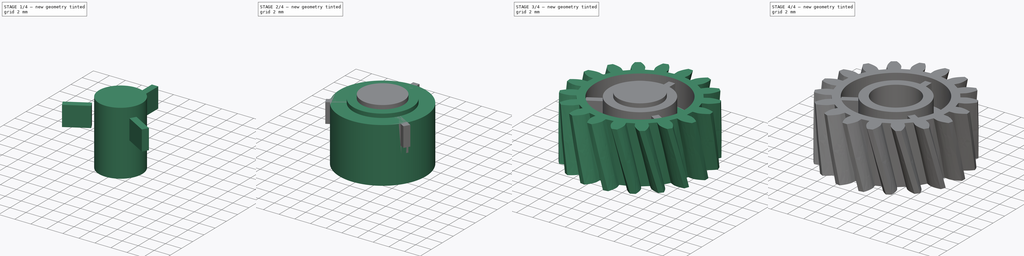
[diagram: build sequence overview — one tinted view per stage of 4, left to right]
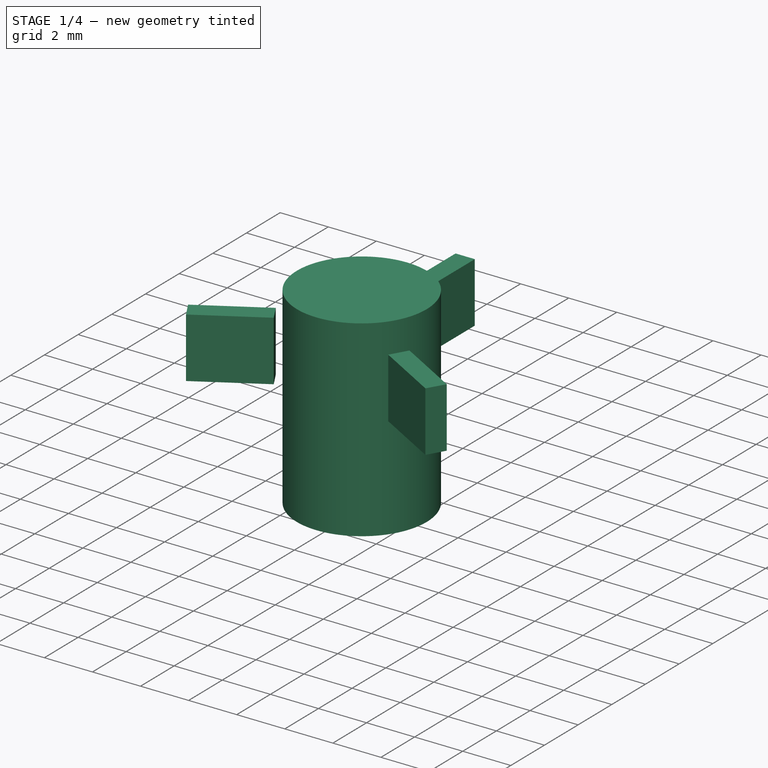
[diagram: stage 1 of 4 — iso view after this stage's code; geometry added in this stage tinted green]
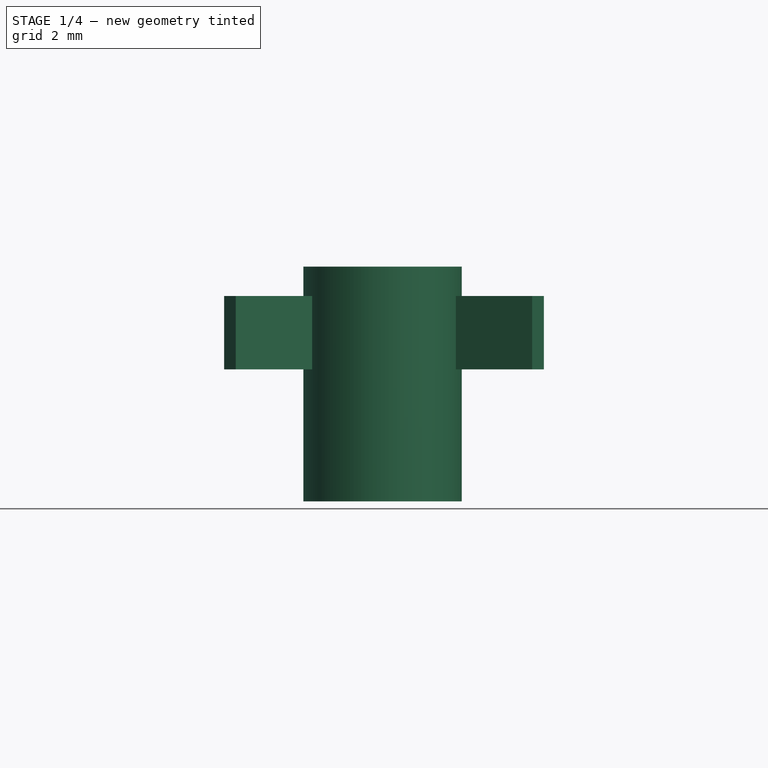
[diagram: stage 1 of 4 — front view after this stage's code; geometry added in this stage tinted green]
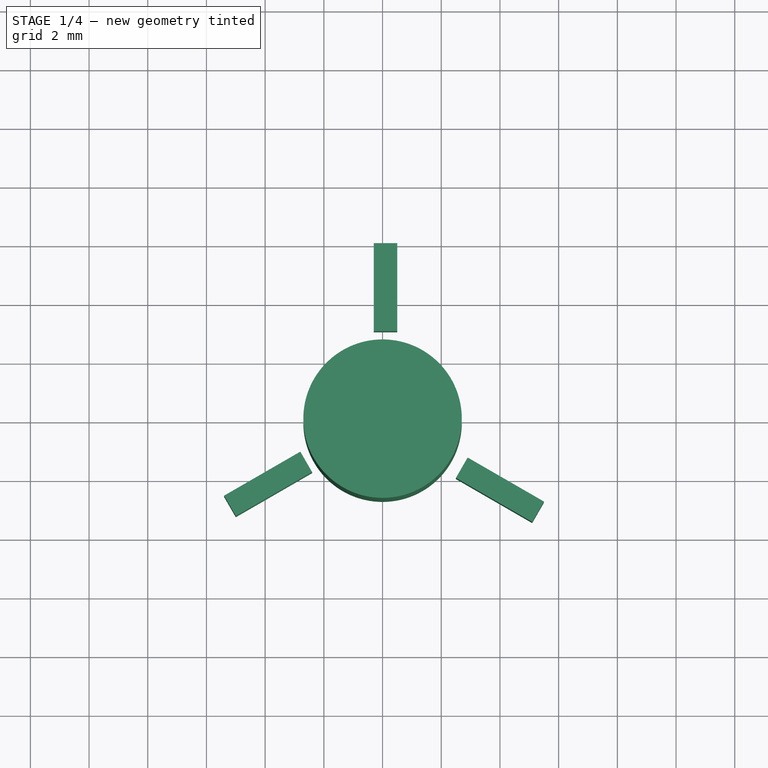
[diagram: stage 1 of 4 — top view after this stage's code; geometry added in this stage tinted green]
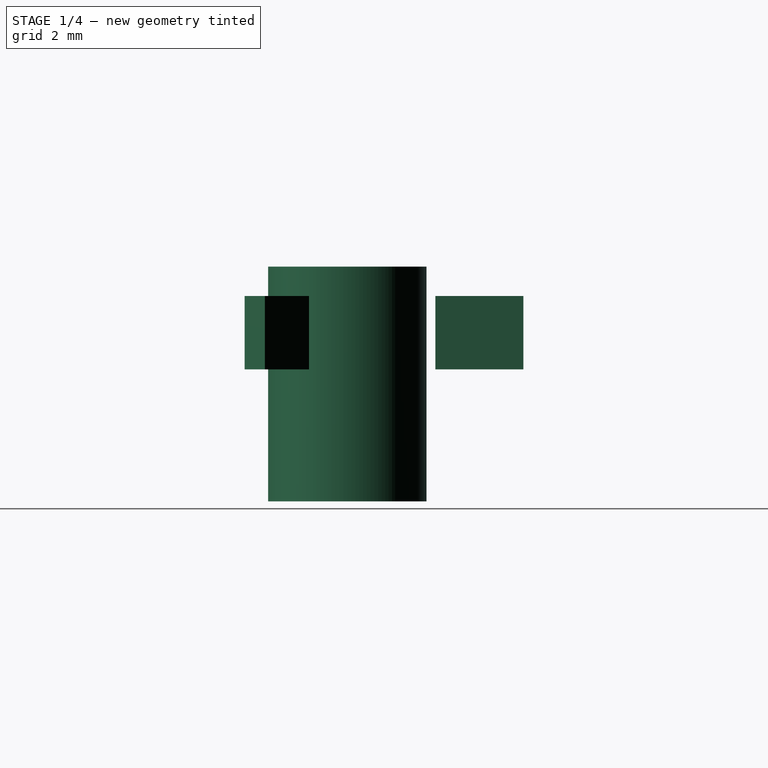
[diagram: stage 1 of 4 — right view after this stage's code; geometry added in this stage tinted green]
FCSTD DOCUMENT  (FreeCAD 0.15R4671 (Git))
Label: Idlegear A
License: All rights reserved
LicenseURL: http://en.wikipedia.org/wiki/All_rights_reserved
objects: Part::Cylinder×4, Part::Cut×3, Part::Box×3, Part::FeaturePython×1, Part::MultiFuse×1, Sketcher::SketchObject×1, PartDesign::Pad×1, PartDesign::PolarPattern×1
note: 16 computed .brp shape members not serialized (recipe doc carries the construction recipe); baked Part::Feature solids carry a one-line shape summary decoded from their .brp

FEATURE [Part::Cylinder] Cylinder003
  Angle = 360
  Height = 8
  Placement = pos=(0,0,0.5) rot=(0,0,1;0rad)
  Radius = 2.7
FEATURE [Part::Box] Box  label="Cube"
  Height = 2.5
  Length = 3
  Placement = pos=(0.5,3,5) rot=(0,0,1;1.5708rad)
  Width = 0.8
FEATURE [Part::Box] Box001  label="Cube001"
  Height = 2.5
  Length = 3
  Placement = pos=(-5,-3.3,5) rot=(0,0,1;0.523599rad)
  Width = 0.8
FEATURE [Part::Box] Box002  label="Cube002"
  Height = 2.5
  Length = 3
  Placement = pos=(2.5,-2,5) rot=(0,0,-1;0.523599rad)
  Width = 0.8
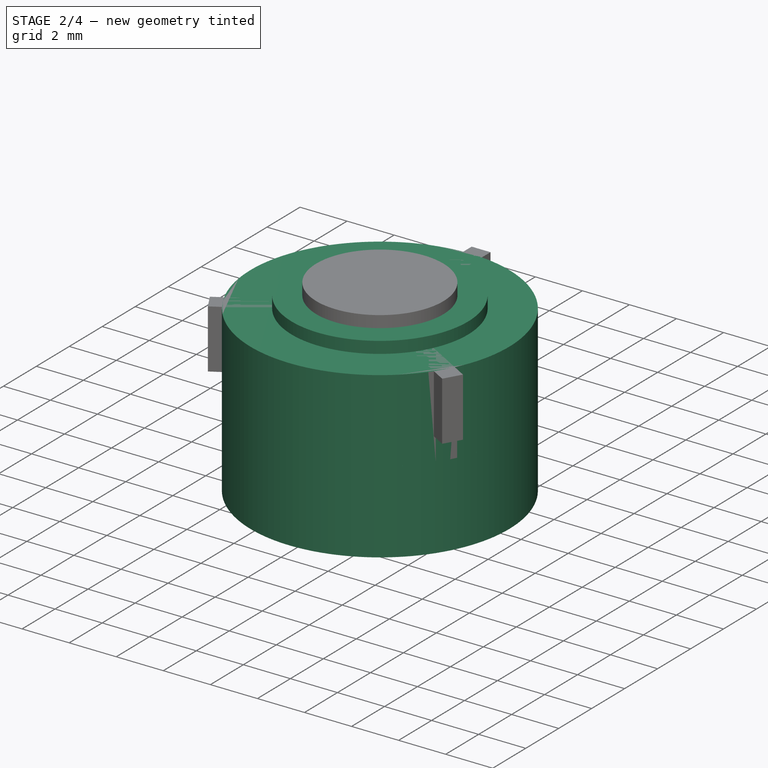
[diagram: stage 2 of 4 — iso view after this stage's code; geometry added in this stage tinted green]
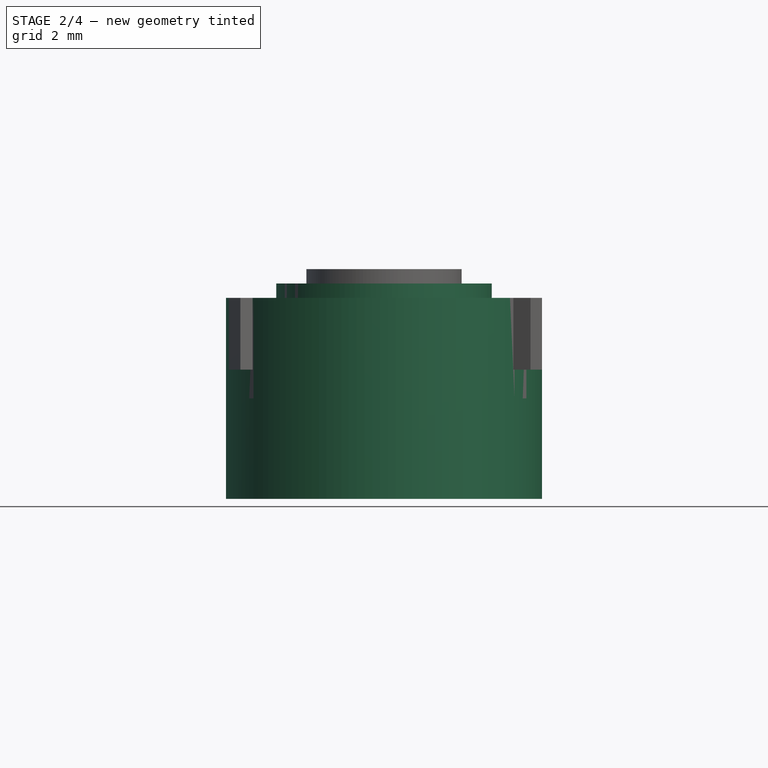
[diagram: stage 2 of 4 — front view after this stage's code; geometry added in this stage tinted green]
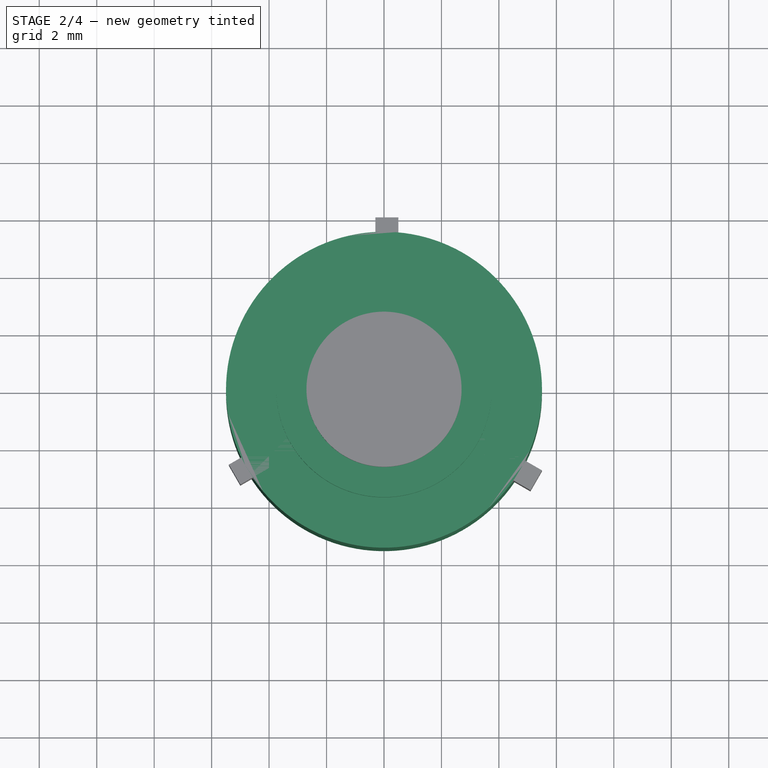
[diagram: stage 2 of 4 — top view after this stage's code; geometry added in this stage tinted green]
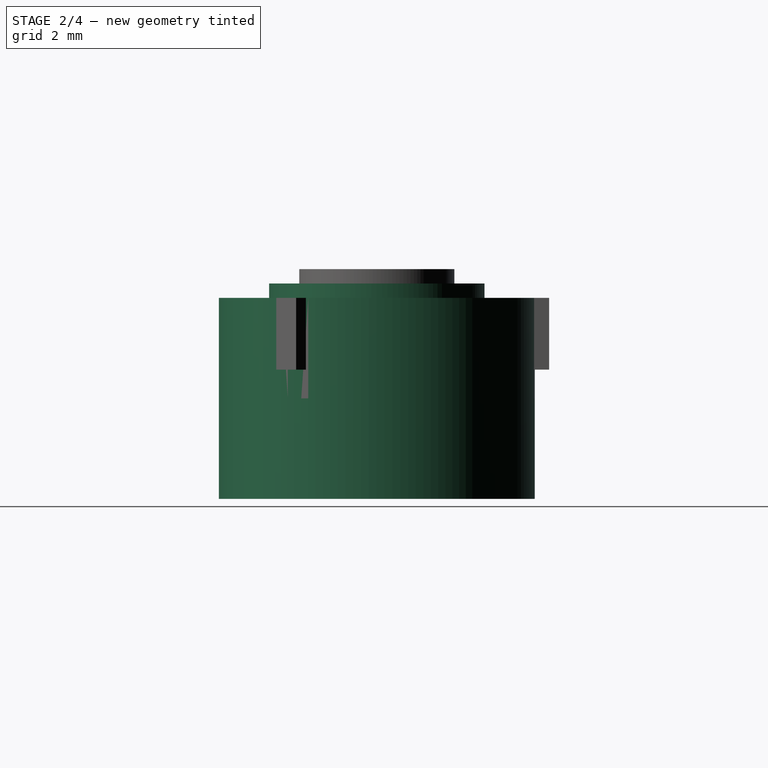
[diagram: stage 2 of 4 — right view after this stage's code; geometry added in this stage tinted green]
FEATURE [Part::Cylinder] Cylinder
  Angle = 360
  Height = 3.5
  Placement = pos=(0,0,4) rot=(0,0,1;0rad)
  Radius = 5.5
FEATURE [Part::Cylinder] Cylinder001
  Angle = 360
  Height = 3.5
  Placement = pos=(0,0,0.5) rot=(0,0,1;0rad)
  Radius = 5.5
FEATURE [Part::Cylinder] Cylinder002
  Angle = 360
  Height = 7
  Placement = pos=(0,0,1) rot=(0,0,1;0rad)
  Radius = 3.75
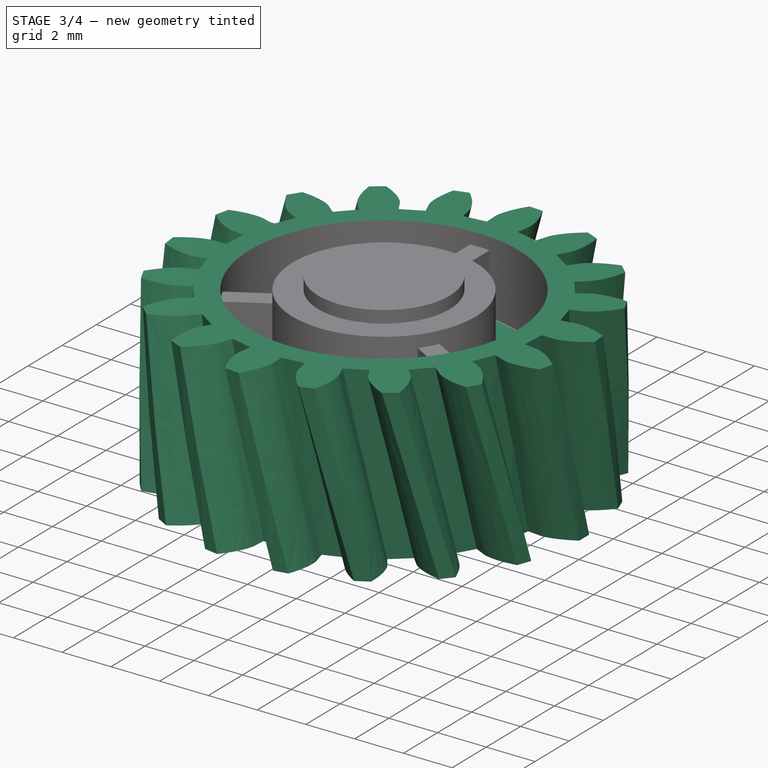
[diagram: stage 3 of 4 — iso view after this stage's code; geometry added in this stage tinted green]
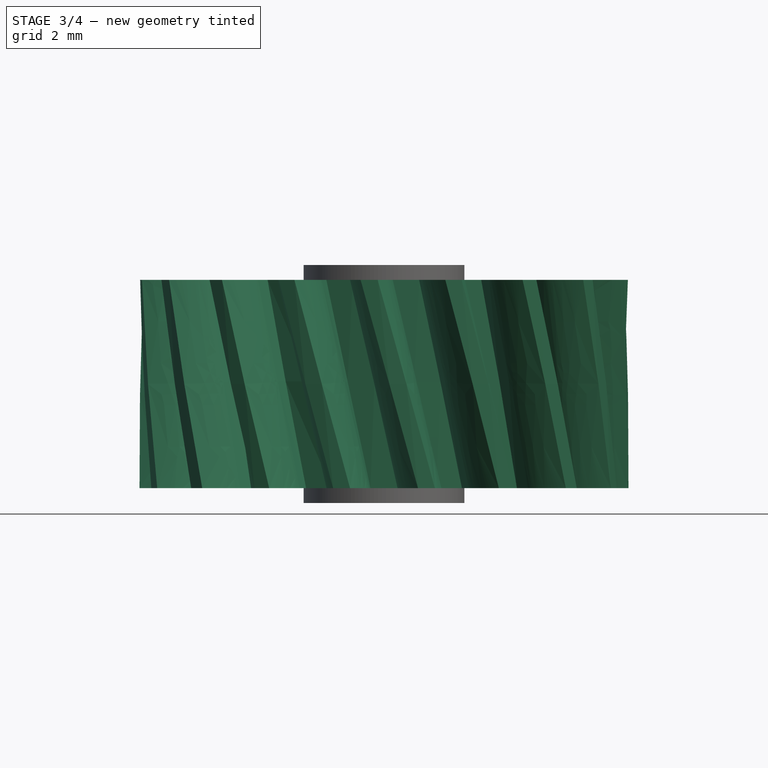
[diagram: stage 3 of 4 — front view after this stage's code; geometry added in this stage tinted green]
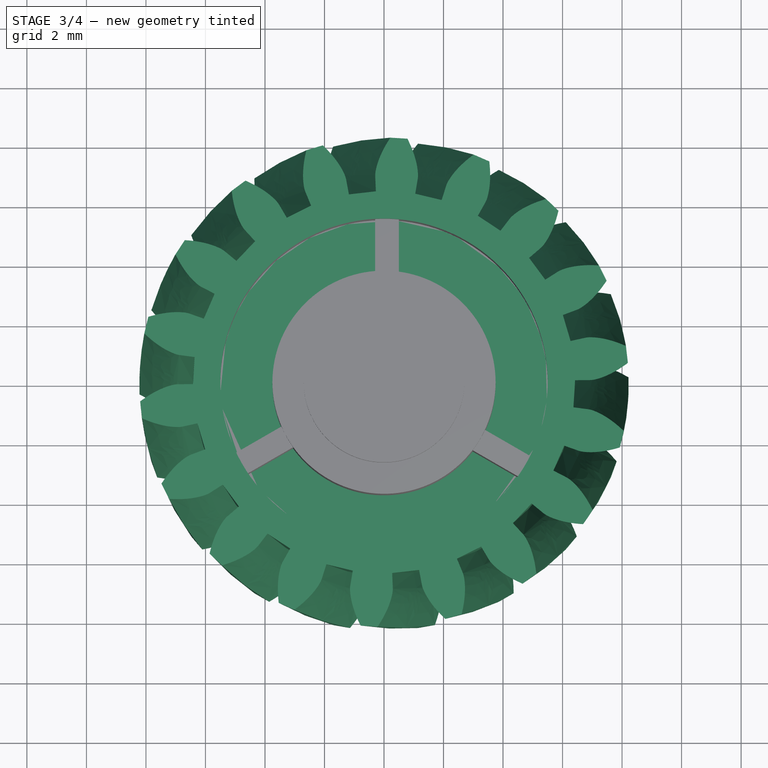
[diagram: stage 3 of 4 — top view after this stage's code; geometry added in this stage tinted green]
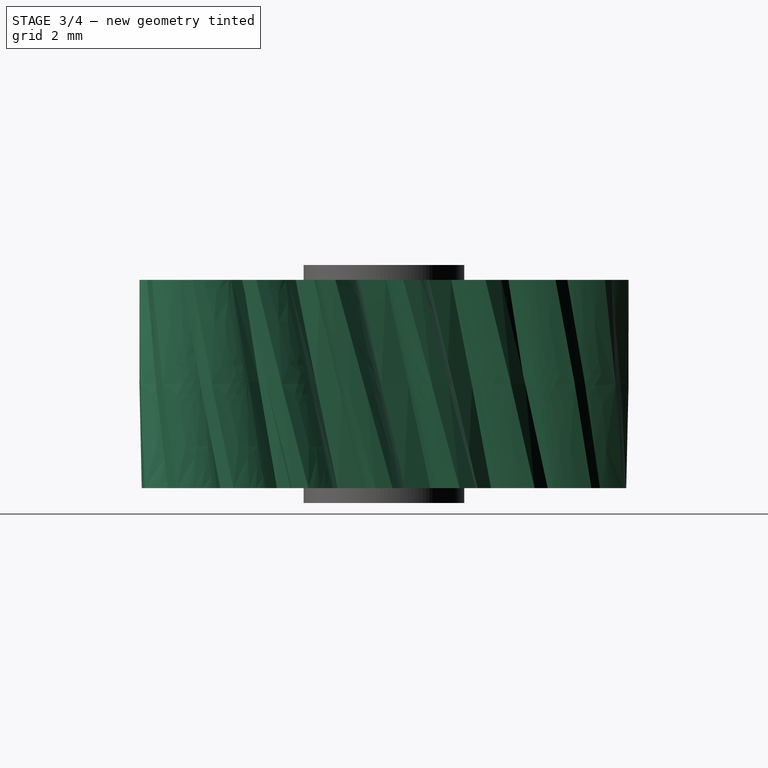
[diagram: stage 3 of 4 — right view after this stage's code; geometry added in this stage tinted green]
FEATURE [Part::FeaturePython] InvoluteGear  # WARN: FeaturePython — macro-defined, semantics opaque (R4)
  backlash = 0
  beta = -14
  clearance = 0.25
  double_helix = false
  head = 0
  height = 7
  module = 0.8
  numpoints = 6
  pressure_angle = 20
  reversed_backlash = false
  shift = 0
  simple = false
  teeth = 18
  undercut = false
FEATURE [Part::Cut] Cut
  Base = -> InvoluteGear
  Placement = pos=(0,0,1) rot=(0,0,1;0rad)
  Tool = -> Cylinder
FEATURE [Part::Cut] Cut001
  Base = -> Cut
  Tool = -> Cylinder001
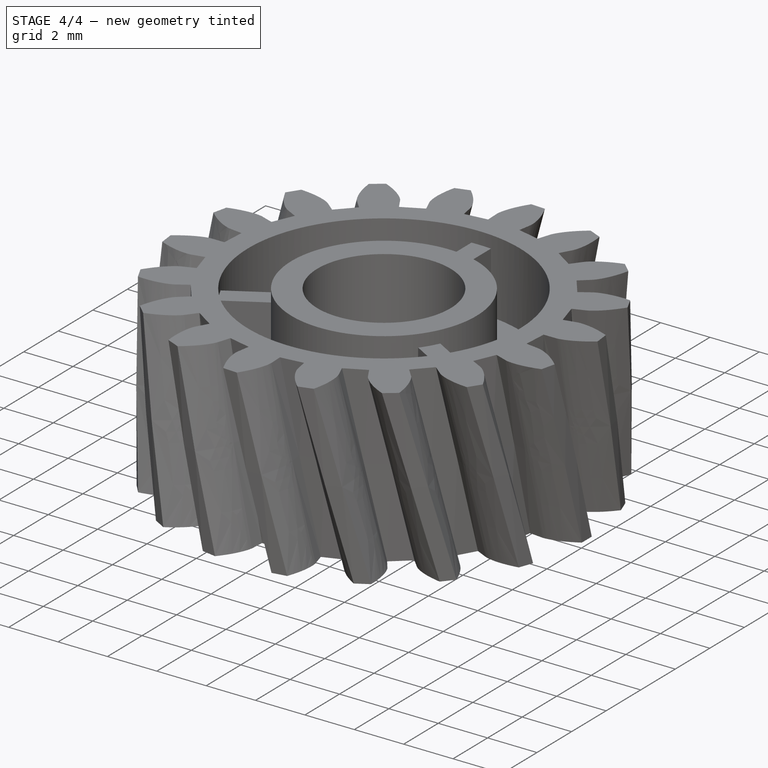
[diagram: stage 4 of 4 — iso view after this stage's code; geometry added in this stage tinted green]
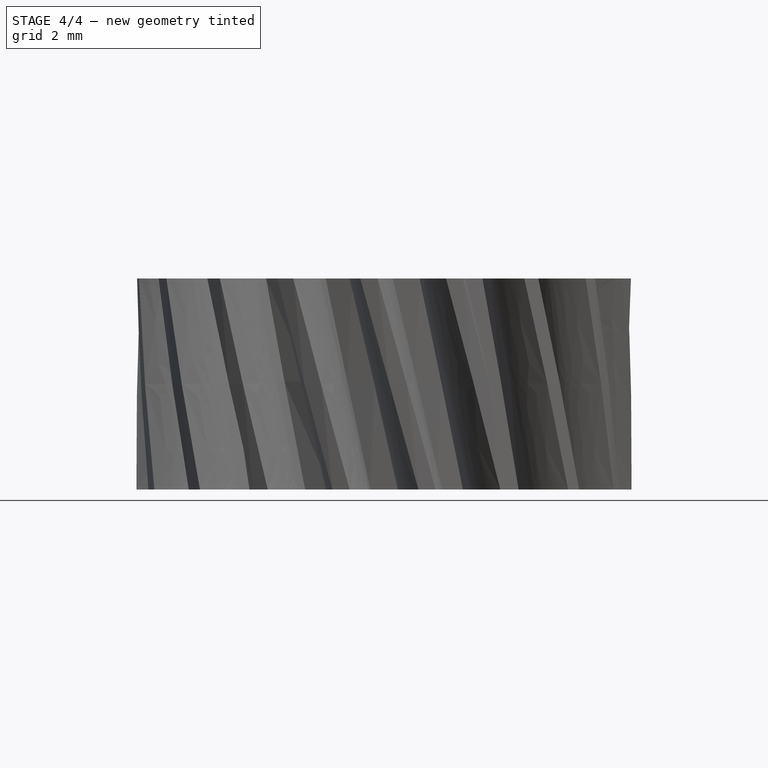
[diagram: stage 4 of 4 — front view after this stage's code; geometry added in this stage tinted green]
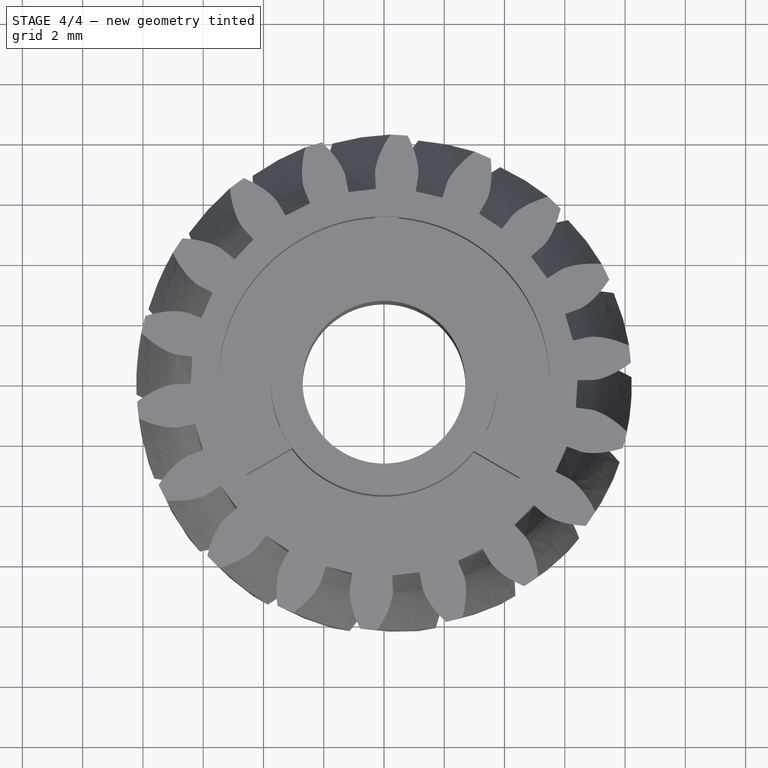
[diagram: stage 4 of 4 — top view after this stage's code; geometry added in this stage tinted green]
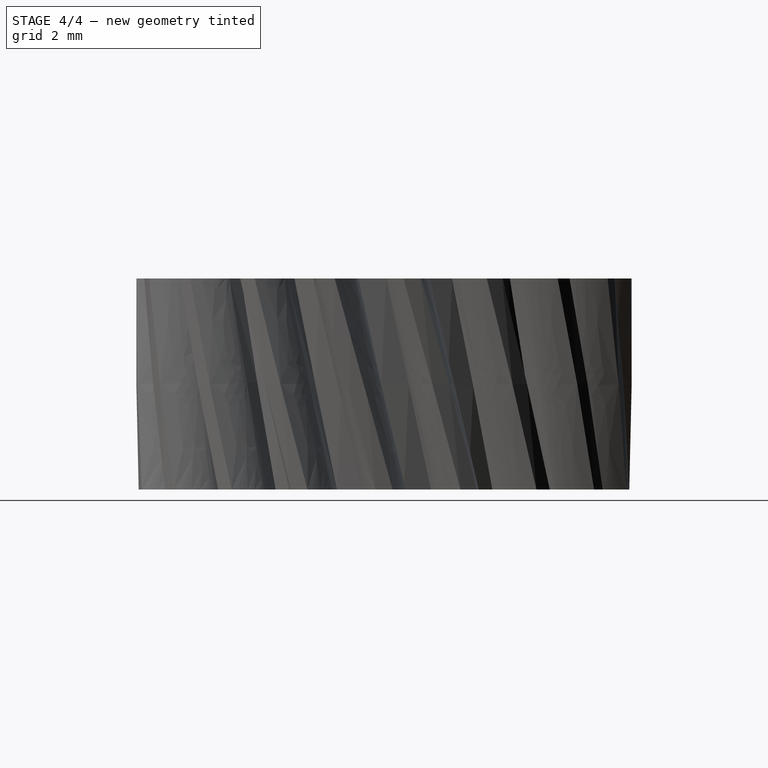
[diagram: stage 4 of 4 — right view after this stage's code; geometry added in this stage tinted green]
FEATURE [Part::MultiFuse] Fusion
  Shapes = -> [Cut001,Cylinder002]
FEATURE [Part::Cut] Cut002
  Base = -> Fusion
  Tool = -> Cylinder003
FEATURE [Sketcher::SketchObject] Sketch
  Placement = pos=(0,0,4) rot=(1,0,0;3.14159rad)
  Support = -> Cut002 [Face9]
  sketch-geometry (1):
    g0: Circle CenterX=-4.61116 CenterY=0 CenterZ=0 NormalX=0 NormalY=0 NormalZ=1 Radius=0.9
  constraints (2):
    c: PointOnObject(g0,g-1)
    c: Radius(g0) = 0.9
FEATURE [PartDesign::Pad] Pad
  Length = 3
  Length2 = 100
  Sketch = -> Sketch
  Type = 0
FEATURE [PartDesign::PolarPattern] PolarPattern
  Angle = 360
  Axis = -> Sketch [N_Axis]
  Occurrences = 6
  Originals = -> [Pad]
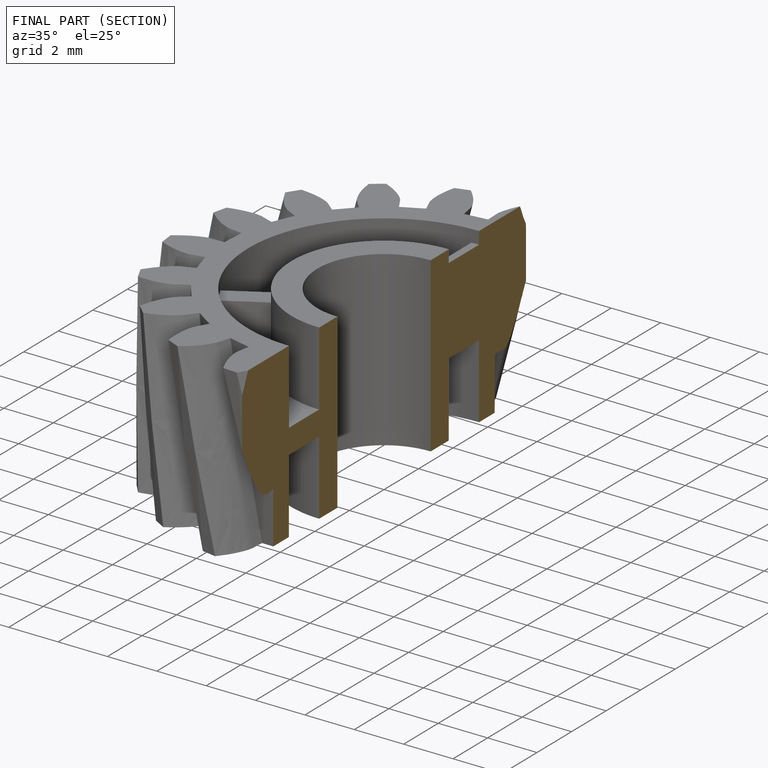
[diagram: finished part — half-section view (interior)]
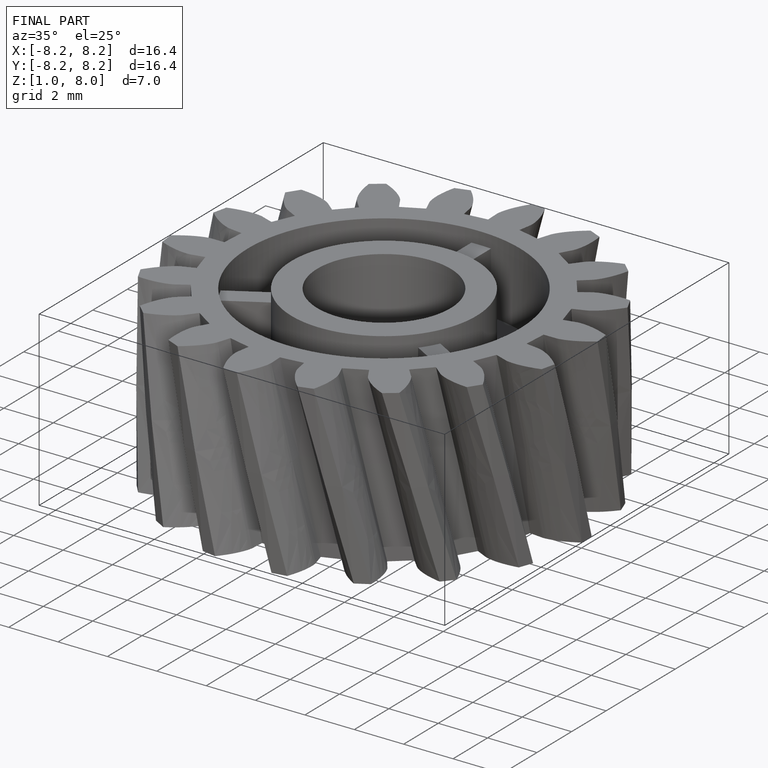
[diagram: finished part — iso view with bounding-box wireframe]
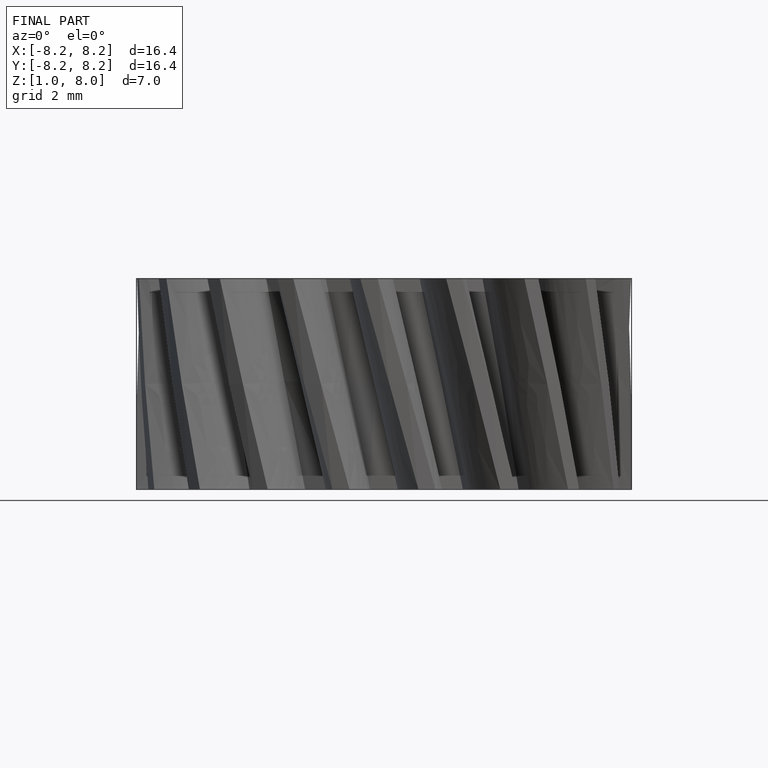
[diagram: finished part — front view with bounding-box wireframe]
